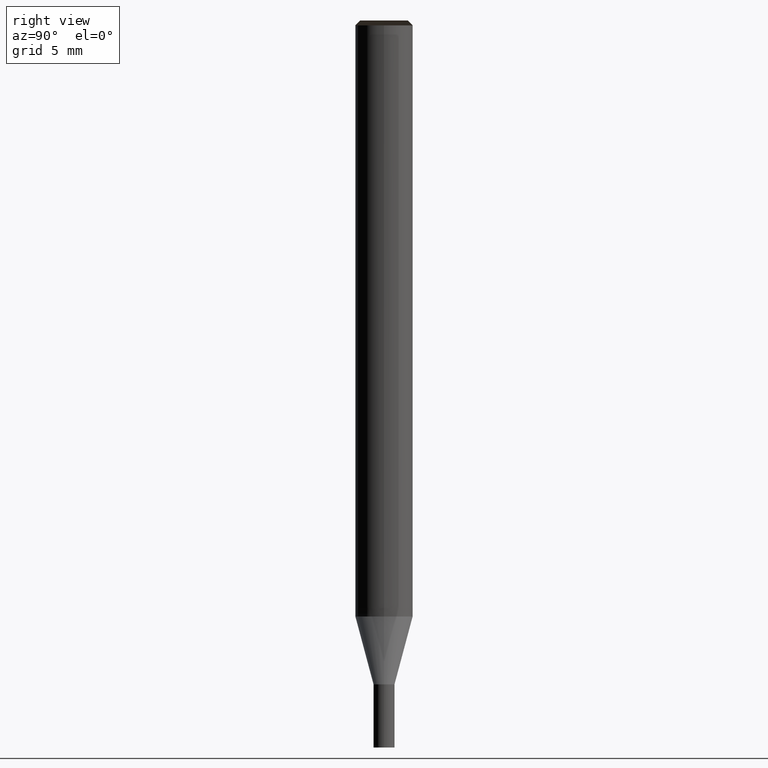
[diagram: clean part render]
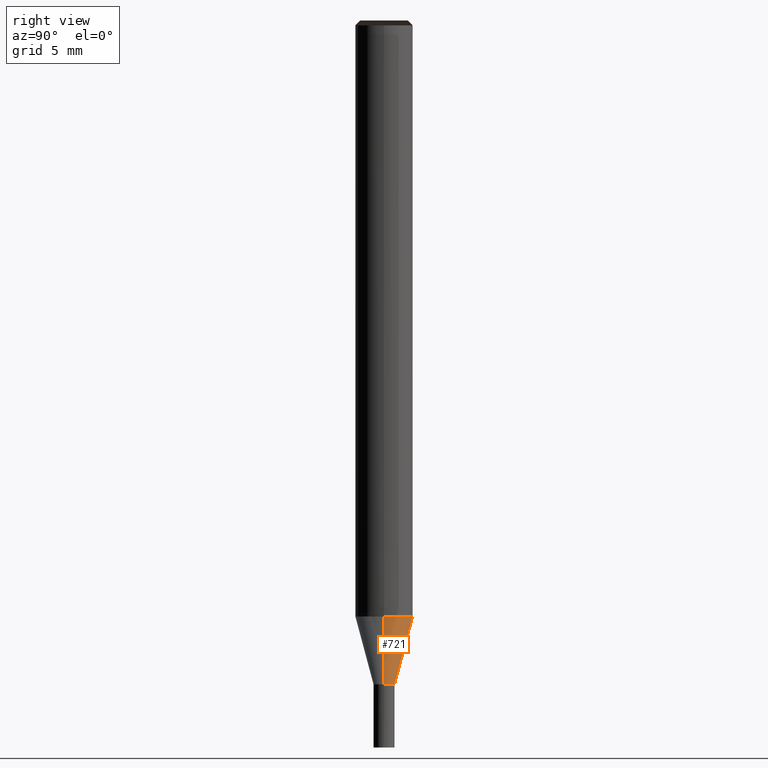
[diagram: same view with one face highlighted and labeled with its STEP entity id]
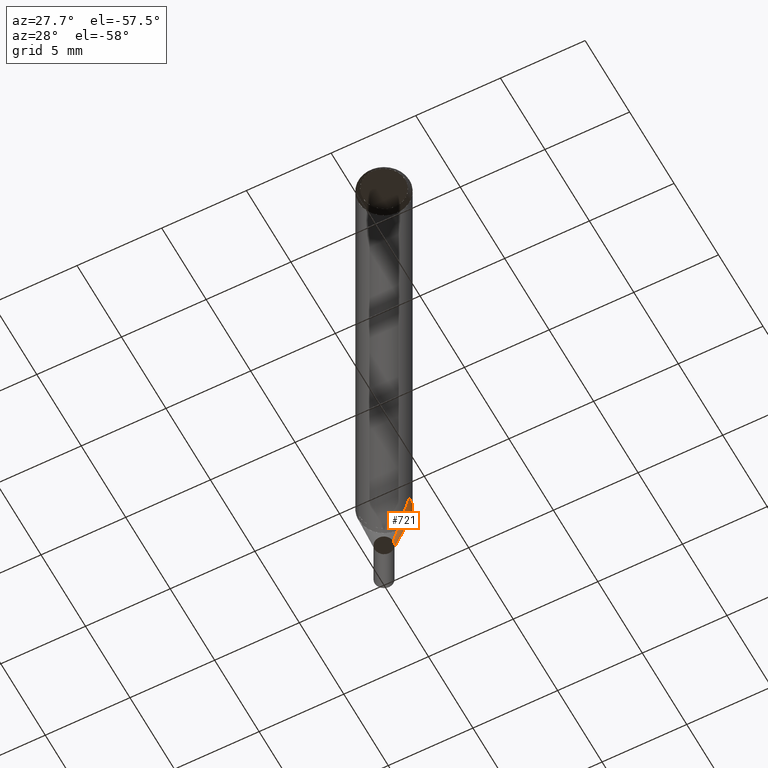
[diagram: same view with one face highlighted and labeled with its STEP entity id]
A machine part, right view. The second image highlights one B-rep face of the part: STEP entity #721.
A second angle (auxiliary view) of the same face is appended — the face is thin or edge-on in the first view.
In plain terms, the highlighted face is a freeform B-spline surface patch.
Its self-contained STEP definition (entity closure, byte-faithful):
#526=CARTESIAN_POINT('',(0.55,0.0,-4.0));
#527=CARTESIAN_POINT('',(0.55,0.55,-4.0));
#528=CARTESIAN_POINT('',(0.0,0.55,-4.0));
#529=CARTESIAN_POINT('',(-0.55,0.55,-4.0));
#530=CARTESIAN_POINT('',(-0.55,0.0,-4.0));
#538=CARTESIAN_POINT('',(1.5,0.0,-0.45455173281));
#539=CARTESIAN_POINT('',(1.5,1.5,-0.45455173281));
#540=CARTESIAN_POINT('',(0.0,1.5,-0.45455173281));
#541=CARTESIAN_POINT('',(-1.5,1.5,-0.45455173281));
#542=CARTESIAN_POINT('',(-1.5,0.0,-0.45455173281));
#702=(
BOUNDED_SURFACE()
B_SPLINE_SURFACE(1,2,(
(#526,#527,#528,#529,#530),
(#538,#539,#540,#541,#542)
), .UNSPECIFIED.,.F.,.F.,.F.)
B_SPLINE_SURFACE_WITH_KNOTS((2,2),(3,2,3),(
0.0,1.0),(
0.0,0.5,1.0), .UNSPECIFIED.)
GEOMETRIC_REPRESENTATION_ITEM()
RATIONAL_B_SPLINE_SURFACE(((1.0,0.707106781187,1.0,0.707106781187,1.0),
(1.0,0.707106781187,1.0,0.707106781187,1.0)
))
REPRESENTATION_ITEM('')
SURFACE()
);
#703=(
BOUNDED_CURVE()
B_SPLINE_CURVE(2,(#530,#529,#528,#527,#526),.UNSPECIFIED.,.F.,.F.)
B_SPLINE_CURVE_WITH_KNOTS((3,2,3),
(0.0,0.5,1.0),.UNSPECIFIED.)
CURVE()
GEOMETRIC_REPRESENTATION_ITEM()
RATIONAL_B_SPLINE_CURVE((1.0,0.707106781187,1.0,0.707106781187,1.0))
REPRESENTATION_ITEM('')
);
#704=(
BOUNDED_CURVE()
B_SPLINE_CURVE(1,(#526,#538),.UNSPECIFIED.,.F.,.F.)
B_SPLINE_CURVE_WITH_KNOTS((2,2),
(0.0,1.0),.UNSPECIFIED.)
CURVE()
GEOMETRIC_REPRESENTATION_ITEM()
RATIONAL_B_SPLINE_CURVE((1.0,1.0))
REPRESENTATION_ITEM('')
);
#705=(
BOUNDED_CURVE()
B_SPLINE_CURVE(2,(#538,#539,#540,#541,#542),.UNSPECIFIED.,.F.,.F.)
B_SPLINE_CURVE_WITH_KNOTS((3,2,3),
(0.0,0.5,1.0),.UNSPECIFIED.)
CURVE()
GEOMETRIC_REPRESENTATION_ITEM()
RATIONAL_B_SPLINE_CURVE((1.0,0.707106781187,1.0,0.707106781187,1.0))
REPRESENTATION_ITEM('')
);
#706=(
BOUNDED_CURVE()
B_SPLINE_CURVE(1,(#542,#530),.UNSPECIFIED.,.F.,.F.)
B_SPLINE_CURVE_WITH_KNOTS((2,2),
(0.0,1.0),.UNSPECIFIED.)
CURVE()
GEOMETRIC_REPRESENTATION_ITEM()
RATIONAL_B_SPLINE_CURVE((1.0,1.0))
REPRESENTATION_ITEM('')
);
#707=VERTEX_POINT('',#526);
#708=VERTEX_POINT('',#530);
#709=VERTEX_POINT('',#538);
#710=VERTEX_POINT('',#542);
#711=EDGE_CURVE('',#708,#707,#703,.T.);
#712=EDGE_CURVE('',#707,#709,#704,.T.);
#713=EDGE_CURVE('',#709,#710,#705,.T.);
#714=EDGE_CURVE('',#710,#708,#706,.T.);
#715=ORIENTED_EDGE('',*,*,#711,.T.);
#716=ORIENTED_EDGE('',*,*,#712,.T.);
#717=ORIENTED_EDGE('',*,*,#713,.T.);
#718=ORIENTED_EDGE('',*,*,#714,.T.);
#719=EDGE_LOOP('',(#715,#716,#717,#718));
#720=FACE_OUTER_BOUND('',#719,.T.);
#721=ADVANCED_FACE('',(#720),#702,.T.);